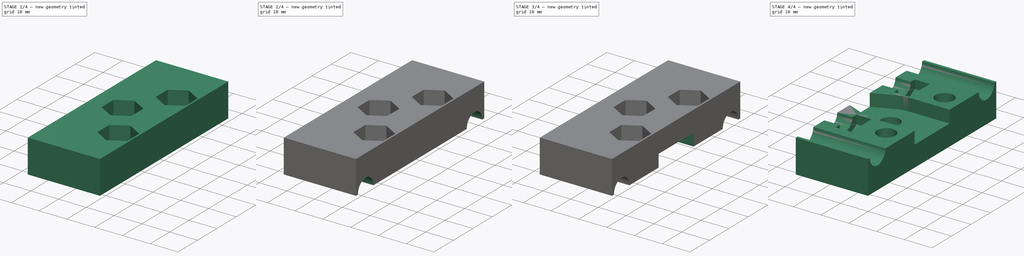
[diagram: build sequence overview — one tinted view per stage of 4, left to right]
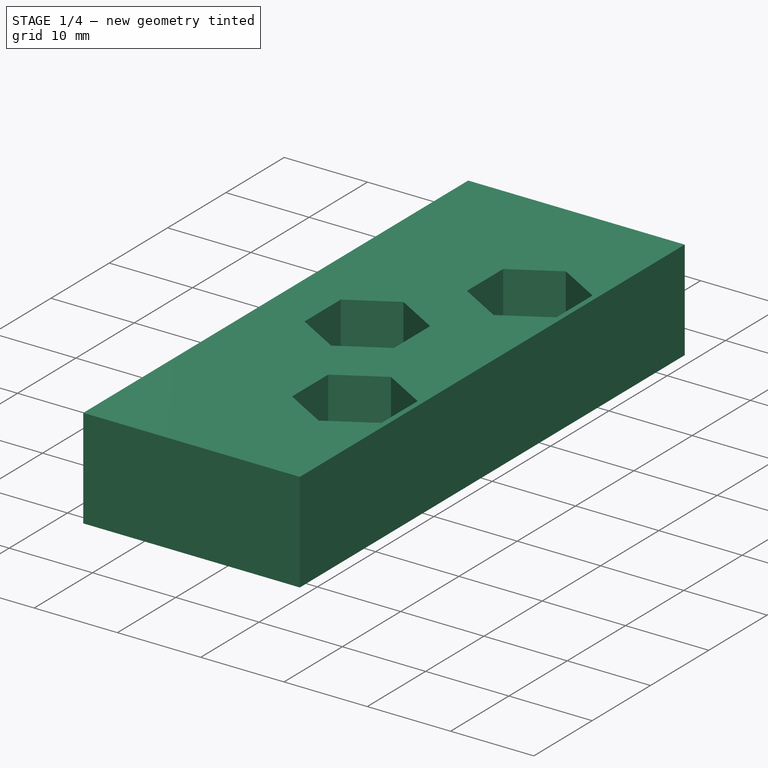
[diagram: stage 1 of 4 — iso view after this stage's code; geometry added in this stage tinted green]
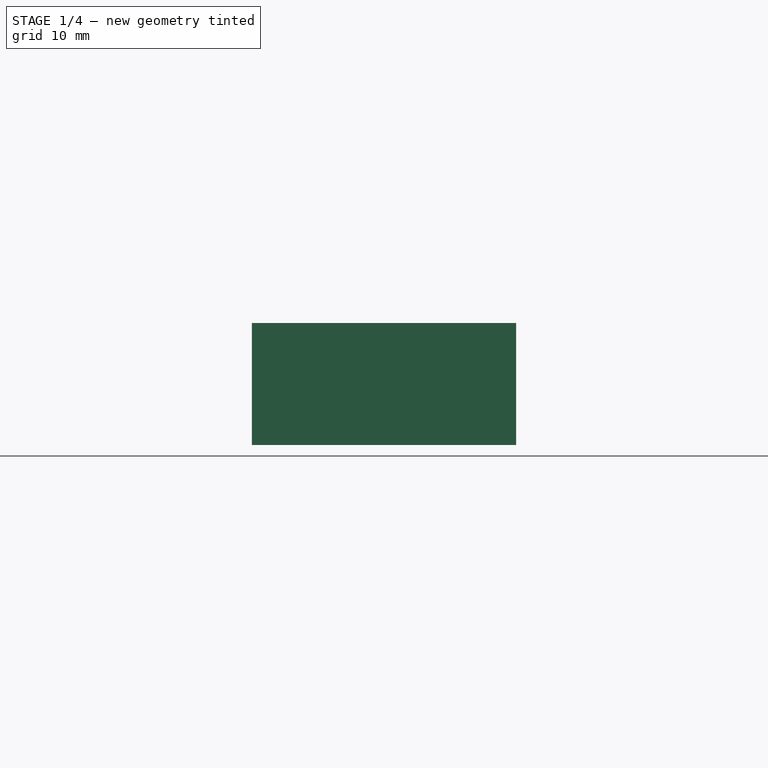
[diagram: stage 1 of 4 — front view after this stage's code; geometry added in this stage tinted green]
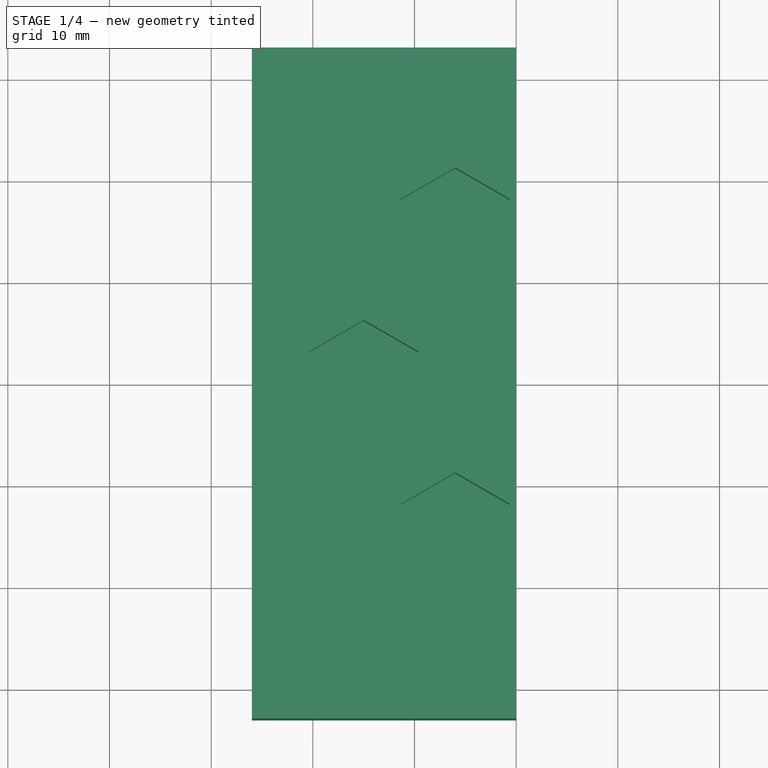
[diagram: stage 1 of 4 — top view after this stage's code; geometry added in this stage tinted green]
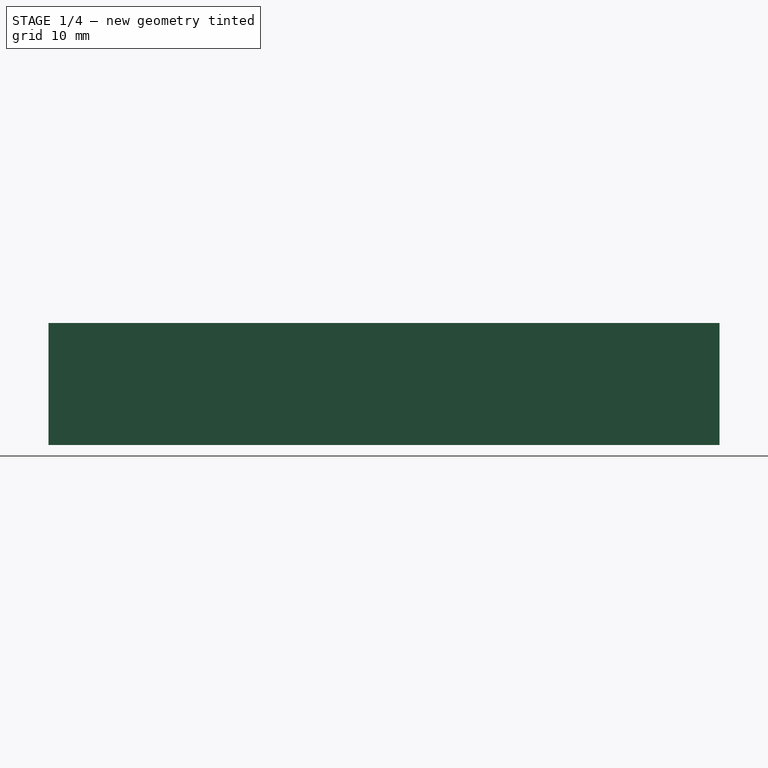
[diagram: stage 1 of 4 — right view after this stage's code; geometry added in this stage tinted green]
FCSTD DOCUMENT  (FreeCAD 0.16R6712 (Git))
Label: 20170420042049!Universal_Axis_Idler_Side_short_version
License: All rights reserved
LicenseURL: http://en.wikipedia.org/wiki/All_rights_reserved
objects: Sketcher::SketchObject×9, PartDesign::Pocket×8, PartDesign::Pad×1, App::FeaturePython×1
note: 27 computed .brp shape members not serialized (recipe doc carries the construction recipe); baked Part::Feature solids carry a one-line shape summary decoded from their .brp

FEATURE [Sketcher::SketchObject] Sketch017  label="Idler Block Sketch"
  sketch-geometry (4):
    g0: LineSegment StartX=0 StartY=33 StartZ=0 EndX=-26 EndY=33 EndZ=0
    g1: LineSegment StartX=-26 StartY=33 StartZ=0 EndX=-26 EndY=-33 EndZ=0
    g2: LineSegment StartX=-26 StartY=-33 StartZ=0 EndX=0 EndY=-33 EndZ=0
    g3: LineSegment StartX=0 StartY=-33 StartZ=0 EndX=0 EndY=33 EndZ=0
  constraints (12):
    c: Coincident(g0,g1)
    c: Coincident(g1,g2)
    c: Coincident(g2,g3)
    c: Coincident(g3,g0)
    c: Horizontal(g0)
    c: Horizontal(g2)
    c: Vertical(g1)
    c: Vertical(g3)
    c: PointOnObject(g0,g-2)
    c: DistanceY(g1,g1) = 66
    c: DistanceX(g0,g0) = 26
    c: Symmetric(g0,g1,g-1)
FEATURE [PartDesign::Pad] Pad002  label="Idler Block Pad"
  Length = 12
  Length2 = 100
  Sketch = -> Sketch017
  Type = 0
FEATURE [Sketcher::SketchObject] Sketch018  label="Nut Catchers Front Sketch"
  Placement = pos=(0,0,12) rot=(0,0,1;0rad)
  Support = -> Pad002 [Face6]
  sketch-geometry (22):
    g0: LineSegment StartX=-9.63064 StartY=3.1 StartZ=0 EndX=-15 EndY=6.2 EndZ=0
    g1: LineSegment StartX=-15 StartY=6.2 StartZ=0 EndX=-20.3694 EndY=3.1 EndZ=0
    g2: LineSegment StartX=-20.3694 StartY=3.1 StartZ=0 EndX=-20.3694 EndY=-3.1 EndZ=0
    g3: LineSegment StartX=-20.3694 StartY=-3.1 StartZ=0 EndX=-15 EndY=-6.2 EndZ=0
    g4: LineSegment StartX=-15 StartY=-6.2 StartZ=0 EndX=-9.63064 EndY=-3.1 EndZ=0
    g5: LineSegment StartX=-9.63064 StartY=-3.1 StartZ=0 EndX=-9.63064 EndY=3.1 EndZ=0
    g6: Circle [constr] CenterX=-15 CenterY=0 CenterZ=0 NormalX=0 NormalY=0 NormalZ=1 Radius=6.2
    g7: LineSegment StartX=-6 StartY=21.2 StartZ=0 EndX=-11.3694 EndY=18.1 EndZ=0
    g8: LineSegment StartX=-11.3694 StartY=18.1 StartZ=0 EndX=-11.3694 EndY=11.9 EndZ=0
    g9: LineSegment StartX=-11.3694 StartY=11.9 StartZ=0 EndX=-6 EndY=8.8 EndZ=0
    g10: LineSegment StartX=-6 StartY=8.8 StartZ=0 EndX=-0.630642 EndY=11.9 EndZ=0
    g11: LineSegment StartX=-0.630642 StartY=11.9 StartZ=0 EndX=-0.630642 EndY=18.1 EndZ=0
    g12: LineSegment StartX=-0.630642 StartY=18.1 StartZ=0 EndX=-6 EndY=21.2 EndZ=0
    g13: Circle [constr] CenterX=-6 CenterY=15 CenterZ=0 NormalX=0 NormalY=0 NormalZ=1 Radius=6.2
    g14: LineSegment StartX=-11.3694 StartY=-11.9 StartZ=0 EndX=-11.3694 EndY=-18.1 EndZ=0
    g15: LineSegment StartX=-11.3694 StartY=-18.1 StartZ=0 EndX=-6 EndY=-21.2 EndZ=0
    g16: LineSegment StartX=-6 StartY=-21.2 StartZ=0 EndX=-0.630642 EndY=-18.1 EndZ=0
    g17: LineSegment StartX=-0.630642 StartY=-18.1 StartZ=0 EndX=-0.630642 EndY=-11.9 EndZ=0
    g18: LineSegment StartX=-0.630642 StartY=-11.9 StartZ=0 EndX=-6 EndY=-8.8 EndZ=0
    g19: LineSegment StartX=-6 StartY=-8.8 StartZ=0 EndX=-11.3694 EndY=-11.9 EndZ=0
    g20: Circle [constr] CenterX=-6 CenterY=-15 CenterZ=0 NormalX=0 NormalY=0 NormalZ=1 Radius=6.2
    g21: LineSegment [constr] StartX=-6 StartY=15 StartZ=0 EndX=-6 EndY=-15 EndZ=0
  constraints (53):
    c: Coincident(g0,g1)
    c: Coincident(g1,g2)
    c: Coincident(g2,g3)
    c: Coincident(g3,g4)
    c: Coincident(g4,g5)
    c: Coincident(g5,g0)
    c: Equal(g0, g1-g5) x5
    c: PointOnObject(g0,g6)
    c: PointOnObject(g1,g6)
    c: PointOnObject(g2,g6)
    c: PointOnObject(g3,g6)
    c: PointOnObject(g4,g6)
    c: PointOnObject(g5,g6)
    c: PointOnObject(g6,g-1)
    c: Coincident(g7,g8)
    c: Coincident(g8,g9)
    c: Coincident(g9,g10)
    c: Coincident(g10,g11)
    c: Coincident(g11,g12)
    c: Coincident(g12,g7)
    c: Equal(g7, g8-g12) x5
    c: PointOnObject(g7,g13)
    c: PointOnObject(g8,g13)
    c: PointOnObject(g9,g13)
    c: PointOnObject(g10,g13)
    c: PointOnObject(g11,g13)
    c: PointOnObject(g12,g13)
    c: Coincident(g14,g15)
    c: Coincident(g15,g16)
    c: Coincident(g16,g17)
    c: Coincident(g17,g18)
    c: Coincident(g18,g19)
    c: Coincident(g19,g14)
    c: Equal(g14, g15-g19) x5
    c: PointOnObject(g14,g20)
    c: PointOnObject(g15,g20)
    c: PointOnObject(g16,g20)
    c: PointOnObject(g17,g20)
    c: PointOnObject(g18,g20)
    c: PointOnObject(g19,g20)
    c: Vertical(g5)
    c: Vertical(g17)
    c: Coincident(g21,g13)
    c: Vertical(g21)
    c: Coincident(g21,g20)
    c: DistanceX(g6,g-1) = 15
    c: Equal(g6,g13)
    c: Equal(g13,g20)
    c: Radius(g13) = 6.2
    c: DistanceY(g21,g21) = 30
    c: Symmetric(g13,g20,g-1)
    c: DistanceX(g13,g-1) = 6
    c: Vertical(g11)
FEATURE [PartDesign::Pocket] Pocket014  label="Nut Catchers Front"
  Length = 6
  Sketch = -> Sketch018
  Type = 0
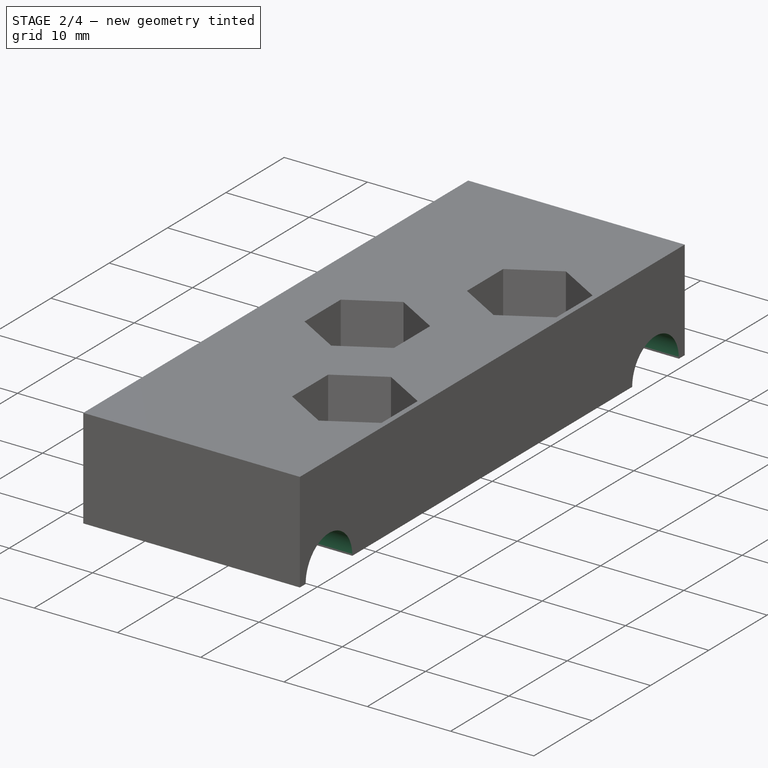
[diagram: stage 2 of 4 — iso view after this stage's code; geometry added in this stage tinted green]
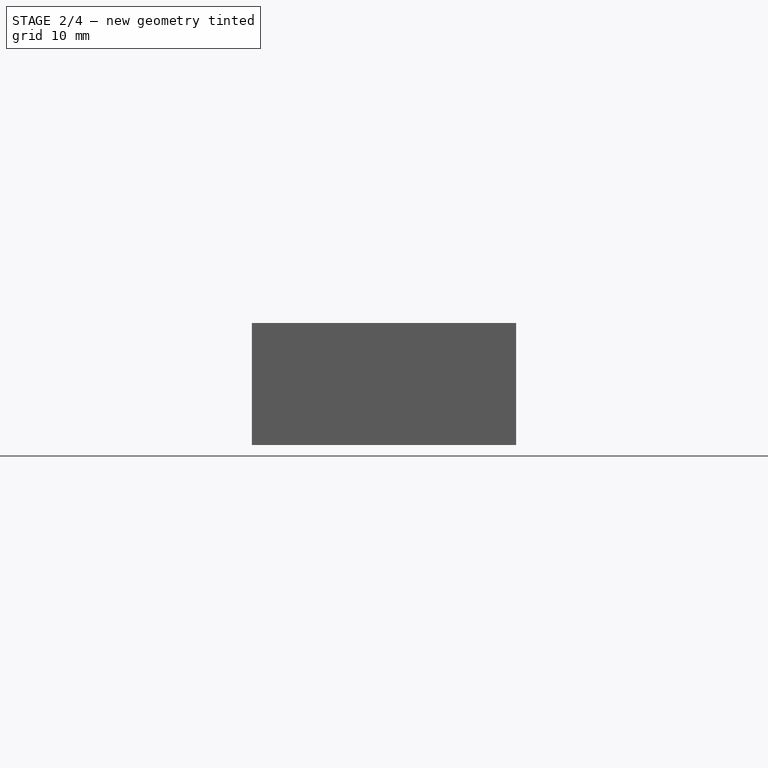
[diagram: stage 2 of 4 — front view after this stage's code; geometry added in this stage tinted green]
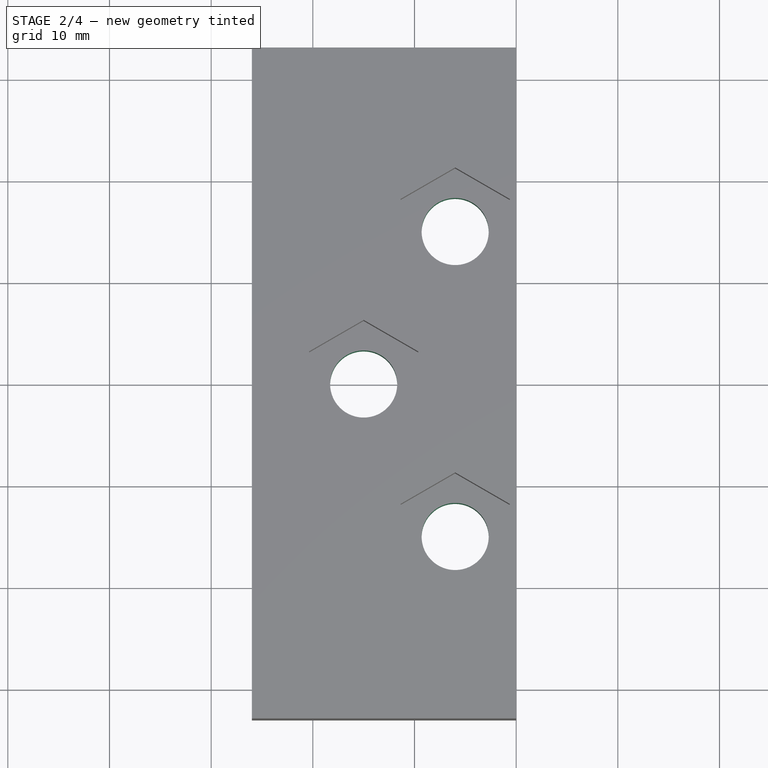
[diagram: stage 2 of 4 — top view after this stage's code; geometry added in this stage tinted green]
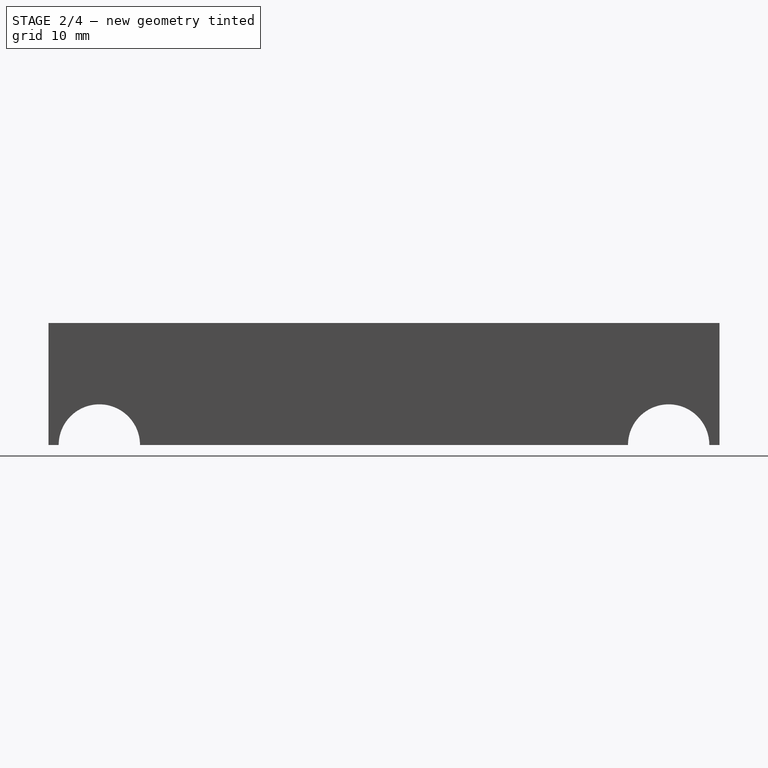
[diagram: stage 2 of 4 — right view after this stage's code; geometry added in this stage tinted green]
FEATURE [Sketcher::SketchObject] Sketch019  label="Bolt Holes Front Sketch"
  Placement = pos=(0,0,12) rot=(0,0,1;0rad)
  Support = -> Pocket014 [Face5]
  sketch-geometry (4):
    g0: Circle CenterX=-6 CenterY=15 CenterZ=0 NormalX=0 NormalY=0 NormalZ=1 Radius=3.3
    g1: Circle CenterX=-15 CenterY=0 CenterZ=0 NormalX=0 NormalY=0 NormalZ=1 Radius=3.3
    g2: Circle CenterX=-6 CenterY=-15 CenterZ=0 NormalX=0 NormalY=0 NormalZ=1 Radius=3.3
    g3: LineSegment [constr] StartX=-6 StartY=15 StartZ=0 EndX=-6 EndY=-15 EndZ=0
  constraints (11):
    c: PointOnObject(g1,g-1)
    c: Equal(g0,g1)
    c: Equal(g1,g2)
    c: Coincident(g3,g0)
    c: Coincident(g3,g2)
    c: Vertical(g3)
    c: DistanceY(g2,g0) = 30
    c: Symmetric(g0,g2,g-1)
    c: DistanceX(g2,g-1) = 6
    c: DistanceX(g1,g-1) = 15
    c: Radius(g1) = 3.3
FEATURE [PartDesign::Pocket] Pocket015  label="Bolt Holes Front"
  Length = 5
  Sketch = -> Sketch019
  Type = 1
FEATURE [Sketcher::SketchObject] Sketch020  label="Rod Holders Sketch"
  Placement = pos=(0,0,0) rot=(0.57735,0.57735,0.57735;2.0944rad)
  Support = -> Pocket015 [Face2]
  sketch-geometry (2):
    g0: Circle CenterX=-28 CenterY=0 CenterZ=0 NormalX=0 NormalY=0 NormalZ=1 Radius=4
    g1: Circle CenterX=28 CenterY=0 CenterZ=0 NormalX=0 NormalY=0 NormalZ=1 Radius=4
  constraints (6):
    c: PointOnObject(g0,g-1)
    c: PointOnObject(g1,g-1)
    c: Symmetric(g0,g1,g-2)
    c: DistanceX(g0,g1) = 56
    c: Equal(g0,g1)
    c: Radius(g0) = 4
FEATURE [PartDesign::Pocket] Pocket016  label="Rod Holders"
  Length = 5
  Sketch = -> Sketch020
  Type = 1
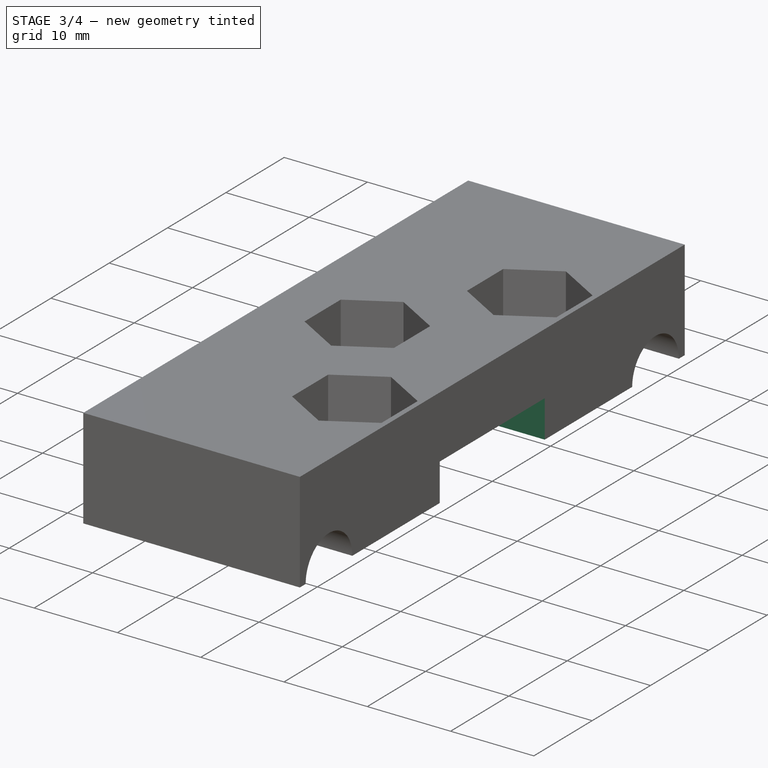
[diagram: stage 3 of 4 — iso view after this stage's code; geometry added in this stage tinted green]
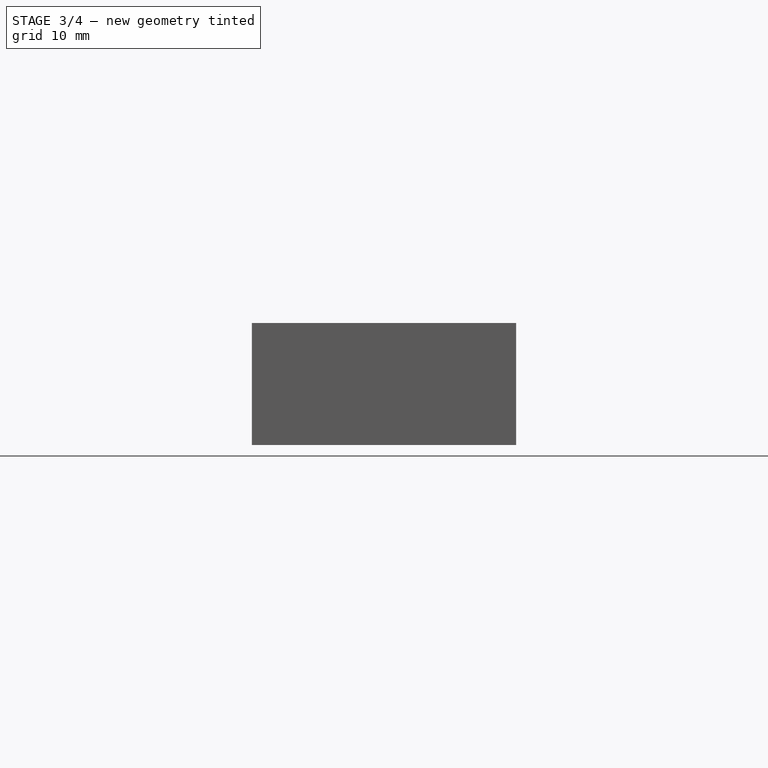
[diagram: stage 3 of 4 — front view after this stage's code; geometry added in this stage tinted green]
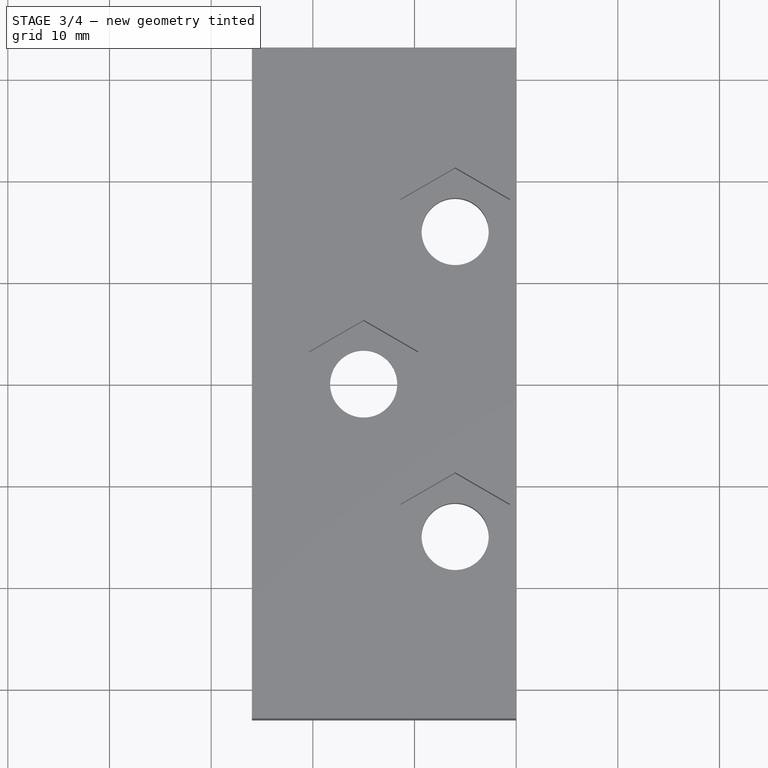
[diagram: stage 3 of 4 — top view after this stage's code; geometry added in this stage tinted green]
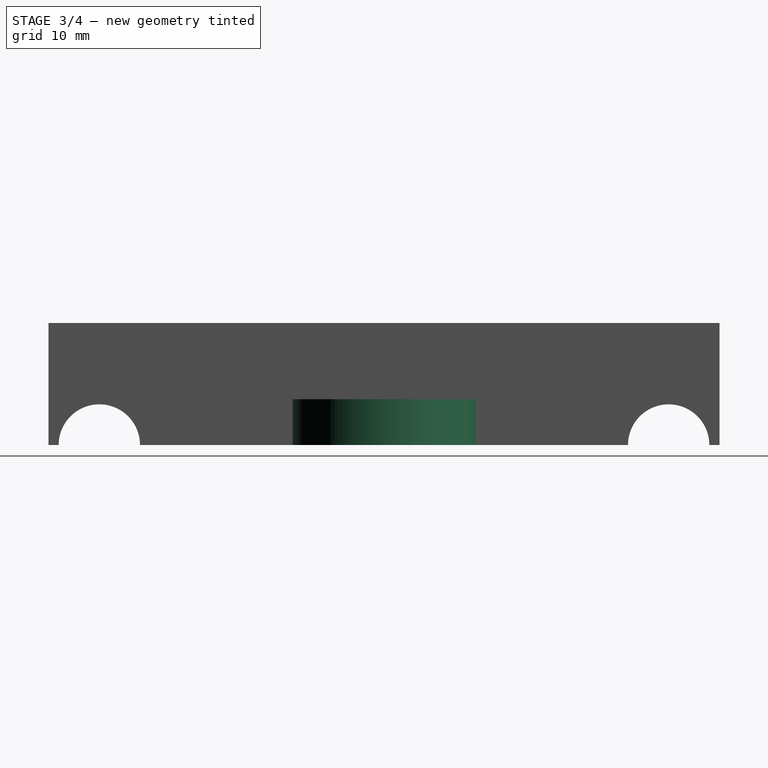
[diagram: stage 3 of 4 — right view after this stage's code; geometry added in this stage tinted green]
FEATURE [Sketcher::SketchObject] Sketch021  label="Belt Passage Sketch"
  Placement = pos=(0,0,0) rot=(1,0,0;3.14159rad)
  Support = -> Pocket016 [Face8]
  sketch-geometry (4):
    g0: LineSegment StartX=0 StartY=9 StartZ=0 EndX=-15 EndY=9 EndZ=0
    g1: LineSegment StartX=-15 StartY=-9 StartZ=0 EndX=0 EndY=-9 EndZ=0
    g2: LineSegment StartX=0 StartY=-9 StartZ=0 EndX=0 EndY=9 EndZ=0
    g3: ArcOfCircle CenterX=-15 CenterY=0 CenterZ=0 NormalX=0 NormalY=0 NormalZ=1 Radius=9 StartAngle=1.5708 EndAngle=4.71239
  constraints (13):
    c: Coincident(g1,g2)
    c: Coincident(g2,g0)
    c: Horizontal(g0)
    c: Horizontal(g1)
    c: Vertical(g2)
    c: PointOnObject(g0,g-2)
    c: Symmetric(g0,g1,g-1)
    c: DistanceY(g2,g2) = 18
    c: PointOnObject(g3,g-1)
    c: Coincident(g3,g0)
    c: Coincident(g1,g3)
    c: DistanceX(g0,g0) = 15
    c: Tangent(g3,g1)
FEATURE [PartDesign::Pocket] Pocket017  label="Belt Passage"
  Length = 4.5
  Sketch = -> Sketch021
  Type = 0
FEATURE [Sketcher::SketchObject] Sketch022  label="Bolt Hole Side Sketch"
  Placement = pos=(-26,0,0) rot=(0.57735,-0.57735,-0.57735;2.0944rad)
  Support = -> Pocket017 [Face3]
  sketch-geometry (2):
    g0: Circle CenterX=-15 CenterY=0 CenterZ=0 NormalX=0 NormalY=0 NormalZ=1 Radius=3.3
    g1: Circle CenterX=15 CenterY=0 CenterZ=0 NormalX=0 NormalY=0 NormalZ=1 Radius=3.3
  constraints (5):
    c: Equal(g1,g0)
    c: Radius(g1) = 3.3
    c: Symmetric(g1,g0,g-2)
    c: DistanceX(g0,g1) = 30
    c: PointOnObject(g0,g-1)
FEATURE [PartDesign::Pocket] Pocket018  label="Bolt hole Side"
  Length = 5.5
  Sketch = -> Sketch022
  Type = 0
FEATURE [Sketcher::SketchObject] Sketch023  label="Nut Catchers Side Sketch"
  Placement = pos=(-20.5,0,0) rot=(0.57735,-0.57735,-0.57735;2.0944rad)
  Support = -> Pocket018 [Face35]
  sketch-geometry (14):
    g0: LineSegment StartX=-9.63064 StartY=3.1 StartZ=0 EndX=-15 EndY=6.2 EndZ=0
    g1: LineSegment StartX=-15 StartY=6.2 StartZ=0 EndX=-20.3694 EndY=3.1 EndZ=0
    g2: LineSegment StartX=-20.3694 StartY=3.1 StartZ=0 EndX=-20.3694 EndY=-3.1 EndZ=0
    g3: LineSegment StartX=-20.3694 StartY=-3.1 StartZ=0 EndX=-15 EndY=-6.2 EndZ=0
    g4: LineSegment StartX=-15 StartY=-6.2 StartZ=0 EndX=-9.63064 EndY=-3.1 EndZ=0
    g5: LineSegment StartX=-9.63064 StartY=-3.1 StartZ=0 EndX=-9.63064 EndY=3.1 EndZ=0
    g6: Circle [constr] CenterX=-15 CenterY=0 CenterZ=0 NormalX=0 NormalY=0 NormalZ=1 Radius=6.2
    g7: LineSegment StartX=20.3694 StartY=3.1 StartZ=0 EndX=15 EndY=6.2 EndZ=0
    g8: LineSegment StartX=15 StartY=6.2 StartZ=0 EndX=9.63064 EndY=3.1 EndZ=0
    g9: LineSegment StartX=9.63064 StartY=3.1 StartZ=0 EndX=9.63064 EndY=-3.1 EndZ=0
    g10: LineSegment StartX=9.63064 StartY=-3.1 StartZ=0 EndX=15 EndY=-6.2 EndZ=0
    g11: LineSegment StartX=15 StartY=-6.2 StartZ=0 EndX=20.3694 EndY=-3.1 EndZ=0
    g12: LineSegment StartX=20.3694 StartY=-3.1 StartZ=0 EndX=20.3694 EndY=3.1 EndZ=0
    g13: Circle [constr] CenterX=15 CenterY=0 CenterZ=0 NormalX=0 NormalY=0 NormalZ=1 Radius=6.2
  constraints (34):
    c: Coincident(g0,g1)
    c: Coincident(g1,g2)
    c: Coincident(g2,g3)
    c: Coincident(g3,g4)
    c: Coincident(g4,g5)
    c: Coincident(g5,g0)
    c: Equal(g0, g1-g5) x5
    c: PointOnObject(g0,g6)
    c: PointOnObject(g1,g6)
    c: PointOnObject(g2,g6)
    c: PointOnObject(g3,g6)
    c: PointOnObject(g4,g6)
    c: PointOnObject(g5,g6)
    c: PointOnObject(g6,g-1)
    c: Coincident(g7,g8)
    c: Coincident(g8,g9)
    c: Coincident(g9,g10)
    c: Coincident(g10,g11)
    c: Coincident(g11,g12)
    c: Coincident(g12,g7)
    c: Equal(g7, g8-g12) x5
    c: PointOnObject(g7,g13)
    c: PointOnObject(g8,g13)
    c: PointOnObject(g9,g13)
    c: PointOnObject(g10,g13)
    c: PointOnObject(g11,g13)
    c: PointOnObject(g12,g13)
    c: PointOnObject(g13,g-1)
    c: Vertical(g5)
    c: Vertical(g9)
    c: Equal(g6,g13)
    c: Radius(g6) = 6.2
    c: Symmetric(g6,g13,g-2)
    c: DistanceX(g6,g13) = 30
FEATURE [PartDesign::Pocket] Pocket019  label="Nut Catchers Side"
  Length = 5.5
  Sketch = -> Sketch023
  Type = 0
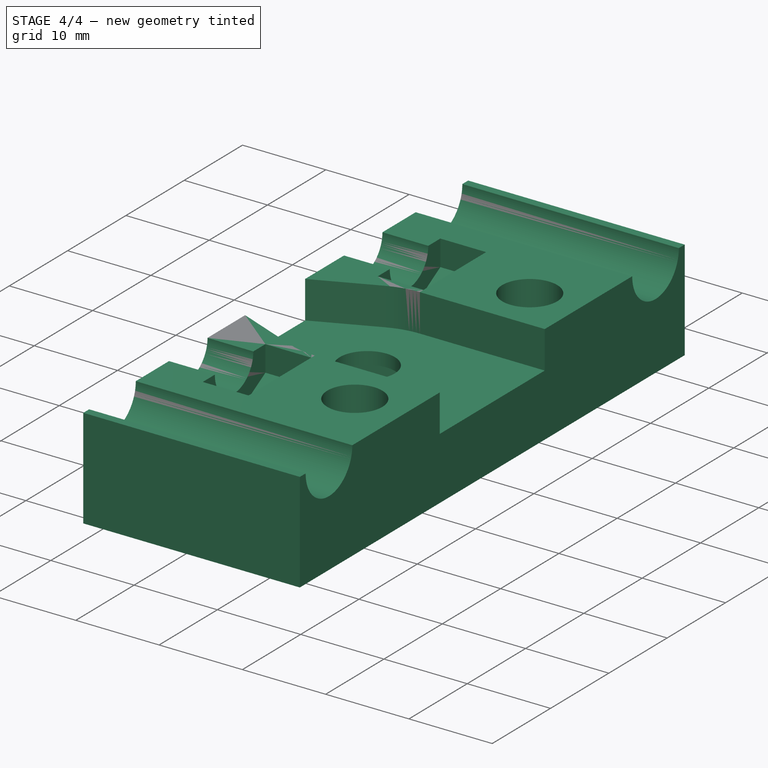
[diagram: stage 4 of 4 — iso view after this stage's code; geometry added in this stage tinted green]
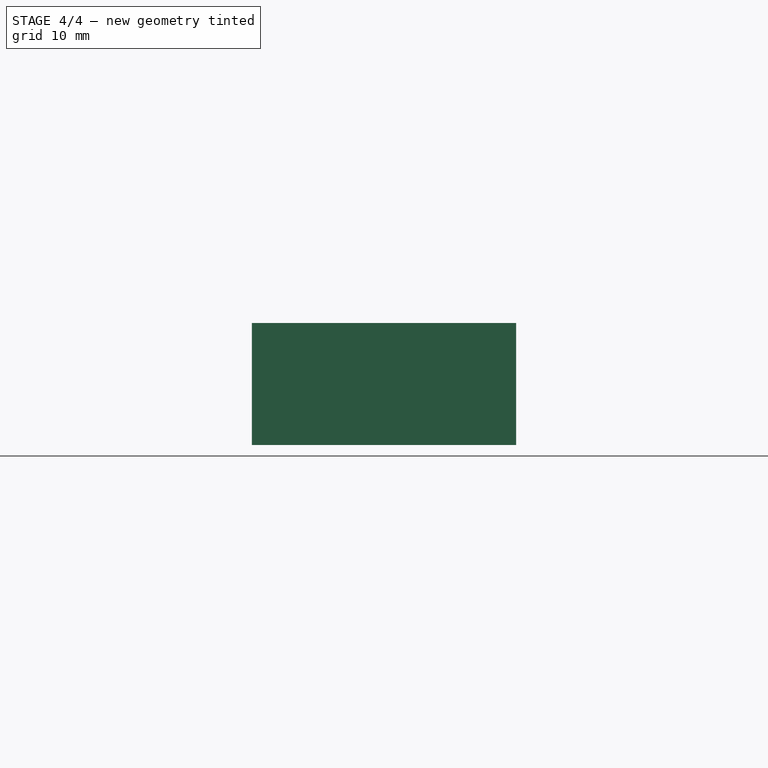
[diagram: stage 4 of 4 — front view after this stage's code; geometry added in this stage tinted green]
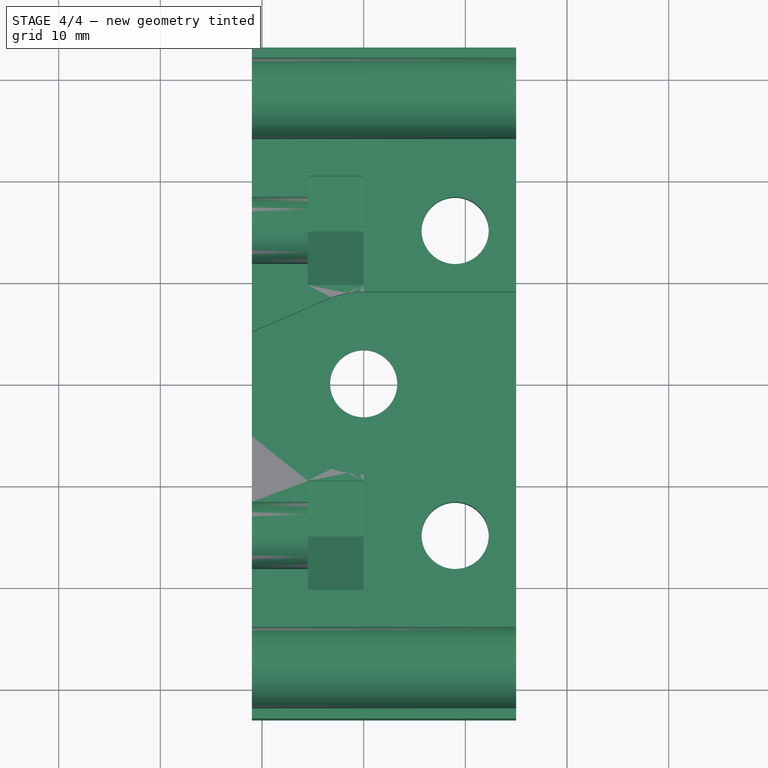
[diagram: stage 4 of 4 — top view after this stage's code; geometry added in this stage tinted green]
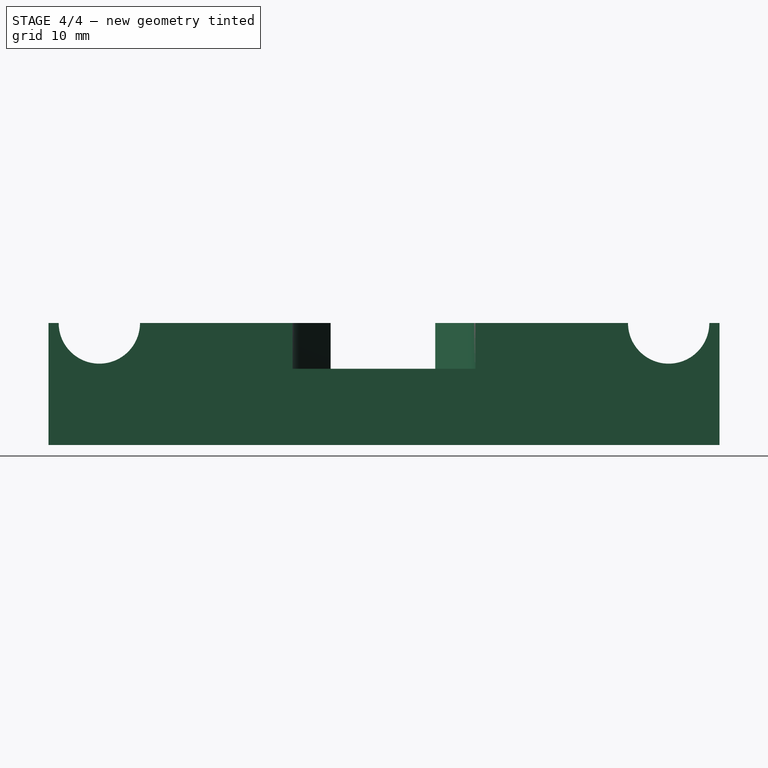
[diagram: stage 4 of 4 — right view after this stage's code; geometry added in this stage tinted green]
FEATURE [Sketcher::SketchObject] Sketch024  label="Magnet Holes Sketch"
  Placement = pos=(0,0,12) rot=(0,0,1;0rad)
  Support = -> Pocket019 [Face5]
  sketch-geometry (4):
    g0: Circle CenterX=-13 CenterY=26 CenterZ=0 NormalX=0 NormalY=0 NormalZ=1 Radius=6.6
    g1: Circle CenterX=-13 CenterY=-26 CenterZ=0 NormalX=0 NormalY=0 NormalZ=1 Radius=6.6
    g2: Circle CenterX=-19 CenterY=12.5 CenterZ=0 NormalX=0 NormalY=0 NormalZ=1 Radius=6.6
    g3: Circle CenterX=-19 CenterY=-12.5 CenterZ=0 NormalX=0 NormalY=0 NormalZ=1 Radius=6.6
  constraints (10):
    c: Radius(g0) = 6.6
    c: Symmetric(g1,g0,g-1)
    c: Equal(g2,g3)
    c: Equal(g3,g0)
    c: Symmetric(g3,g2,g-1)
    c: DistanceX(g2,g-1) = 19
    c: DistanceY(g3,g2) = 25
    c: DistanceY(g1,g0) = 52
    c: DistanceX(g0,g-1) = 13
    c: Equal(g3,g1)
FEATURE [PartDesign::Pocket] Pocket020  label="Magnet Holes"
  Length = 2
  Placement = pos=(15,0,2.5) rot=(1,0,0;3.14159rad)
  Sketch = -> Sketch024
  Type = 0
FEATURE [App::FeaturePython] circularEdgeConstraint01  # a2plus constraint (typed FeaturePython)
  Object1 = Part__Feature
  Object2 = Pocket020
  SubElement1 = Face18
  SubElement2 = Edge78
  Type = circularEdge
  directionConstraint = 1
  lockRotation = false
  offset = 0
FEATURE [Sketcher::SketchObject] Sketch
  Placement = pos=(15,0,2.5) rot=(0,0,1;0rad)
  Support = -> Pocket020 [Face8]
  sketch-geometry (4):
    g0: LineSegment StartX=-18.5539 StartY=8.28111 StartZ=0 EndX=-26.0936 EndY=4.99993 EndZ=0
    g1: LineSegment StartX=-26.0936 StartY=4.99993 StartZ=0 EndX=-26.2745 EndY=-5.1344 EndZ=0
    g2: LineSegment StartX=-26.2745 StartY=-5.1344 StartZ=0 EndX=-18.4285 EndY=-8.32049 EndZ=0
    g3: LineSegment StartX=-18.4285 StartY=-8.32049 StartZ=0 EndX=-18.5539 EndY=8.28111 EndZ=0
  constraints (4):
    c: Coincident(g0,g1)
    c: Coincident(g1,g2)
    c: Coincident(g2,g3)
    c: Coincident(g3,g0)
FEATURE [PartDesign::Pocket] Pocket
  Length = 4.5
  Placement = pos=(15,0,2.5) rot=(1,0,0;3.14159rad)
  Sketch = -> Sketch
  Type = 0
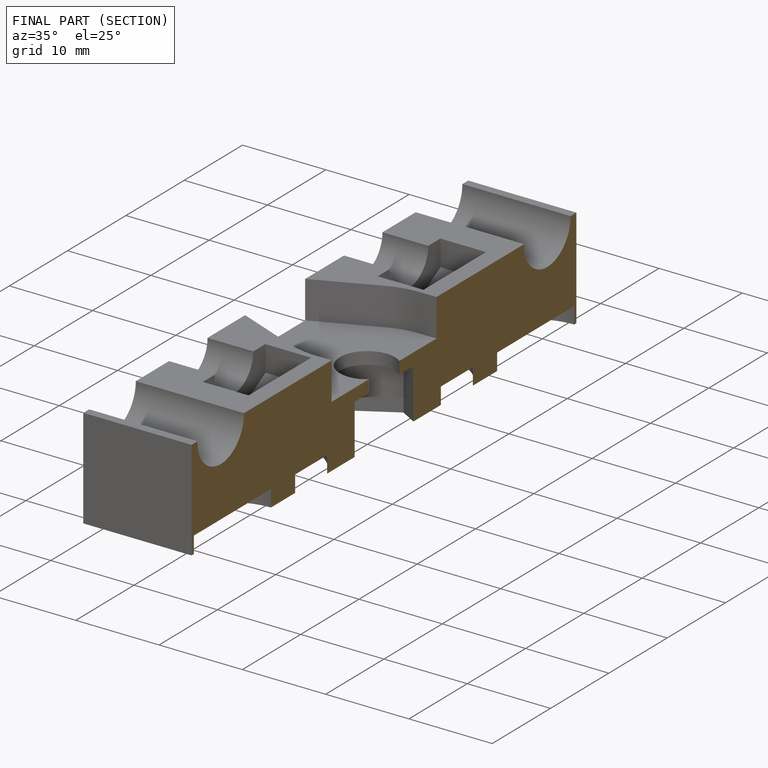
[diagram: finished part — half-section view (interior)]
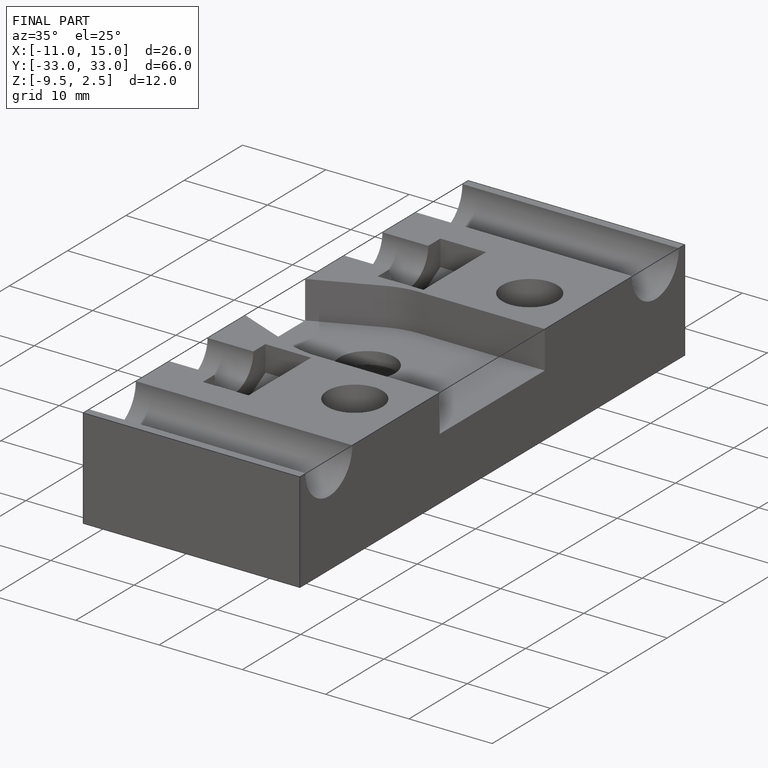
[diagram: finished part — iso view with bounding-box wireframe]
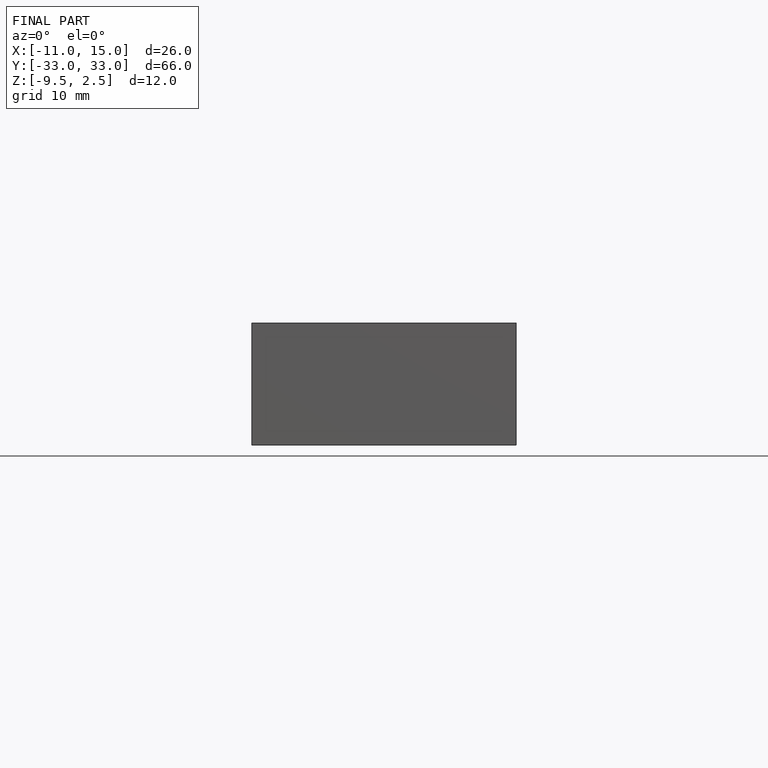
[diagram: finished part — front view with bounding-box wireframe]
